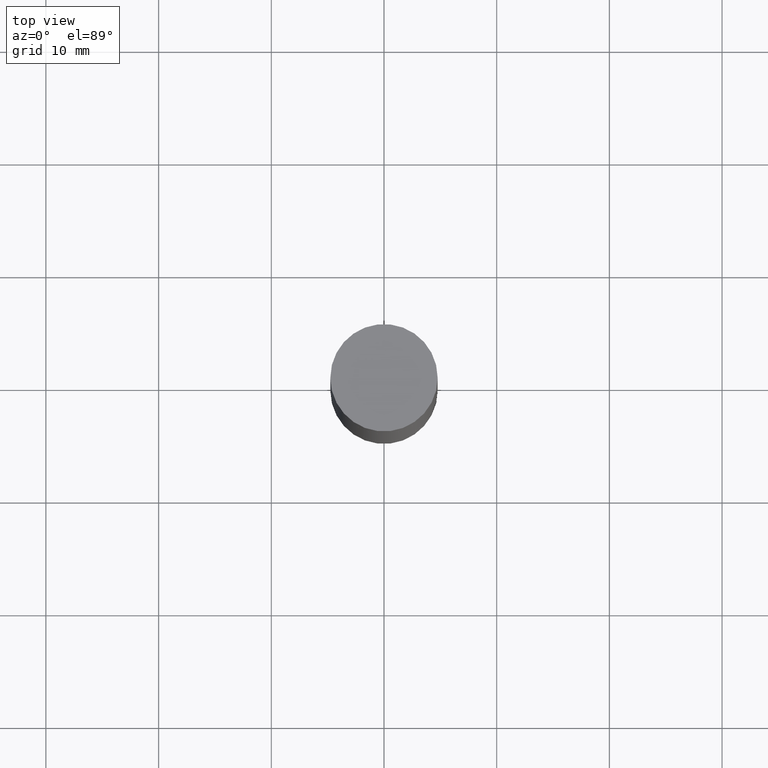
[diagram: clean part render]
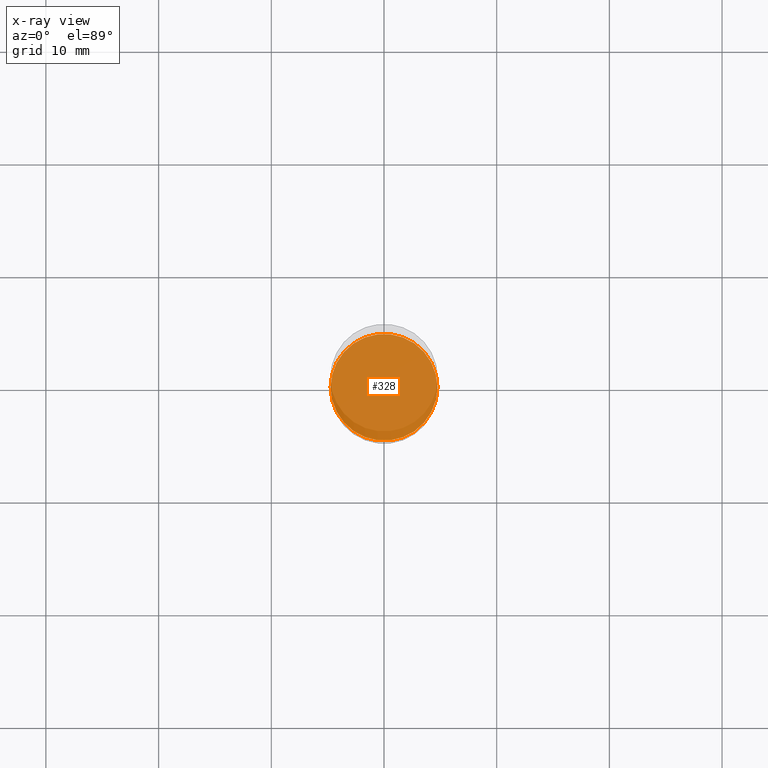
[diagram: x-ray — body ghosted, one internal face saturated and labeled with its STEP entity id]
A machine part, top view, then the same camera in x-ray: the body is ghosted and one INTERNAL B-rep face — a face not visible from any outside direction — is saturated and labeled: STEP entity #328.
In plain terms, the highlighted planar face has unit normal (-0, 0, 1).
Its self-contained STEP definition (entity closure, byte-faithful):
#45 = PLANE ( 'NONE',  #407 ) ;
#128 = CARTESIAN_POINT ( 'NONE',  ( 4.739318546386794397E-29, -6.766490834678016045E-15, -1.937999999999999945 ) ) ;
#133 = CARTESIAN_POINT ( 'NONE',  ( 4.739318546386794397E-29, -6.766490834678016045E-15, -1.937999999999999945 ) ) ;
#147 = DIRECTION ( 'NONE',  ( 1.000000000000000000, -6.982962677686265922E-15, 4.876176775795935793E-29 ) ) ;
#191 = ORIENTED_EDGE ( 'NONE', *, *, #582, .F. ) ;
#197 = DIRECTION ( 'NONE',  ( -2.438088387897960049E-29, 3.491481338843145188E-15, 1.000000000000000000 ) ) ;
#235 = DIRECTION ( 'NONE',  ( -2.445468806185136597E-29, 3.491481338843145583E-15, 1.000000000000000000 ) ) ;
#266 = CIRCLE ( 'NONE', #533, 0.1864999999999999714 ) ;
#281 = VERTEX_POINT ( 'NONE', #678 ) ;
#328 = ADVANCED_FACE ( 'NONE', ( #513 ), #45, .F. ) ;
#335 = DIRECTION ( 'NONE',  ( 1.000000000000000000, -6.982962677686269077E-15, 0.000000000000000000 ) ) ;
#407 = AXIS2_PLACEMENT_3D ( 'NONE', #462, #197, #147 ) ;
#433 = AXIS2_PLACEMENT_3D ( 'NONE', #128, #492, #546 ) ;
#462 = CARTESIAN_POINT ( 'NONE',  ( 4.739318546386794397E-29, -6.766490834678016045E-15, -1.937999999999999945 ) ) ;
#492 = DIRECTION ( 'NONE',  ( -2.445468806185136597E-29, 3.491481338843145583E-15, 1.000000000000000000 ) ) ;
#513 = FACE_OUTER_BOUND ( 'NONE', #625, .T. ) ;
#533 = AXIS2_PLACEMENT_3D ( 'NONE', #133, #235, #335 ) ;
#541 = ORIENTED_EDGE ( 'NONE', *, *, #675, .F. ) ;
#546 = DIRECTION ( 'NONE',  ( 1.000000000000000000, -6.982962677686269077E-15, 0.000000000000000000 ) ) ;
#578 = VERTEX_POINT ( 'NONE', #597 ) ;
#582 = EDGE_CURVE ( 'NONE', #281, #578, #266, .T. ) ;
#597 = CARTESIAN_POINT ( 'NONE',  ( -0.1864999999999999714, -5.436030178137207592E-15, -1.937999999999999945 ) ) ;
#625 = EDGE_LOOP ( 'NONE', ( #191, #541 ) ) ;
#641 = CIRCLE ( 'NONE', #433, 0.1864999999999999714 ) ;
#675 = EDGE_CURVE ( 'NONE', #578, #281, #641, .T. ) ;
#678 = CARTESIAN_POINT ( 'NONE',  ( 0.1864999999999999714, -8.068813374066505039E-15, -1.937999999999999945 ) ) ;